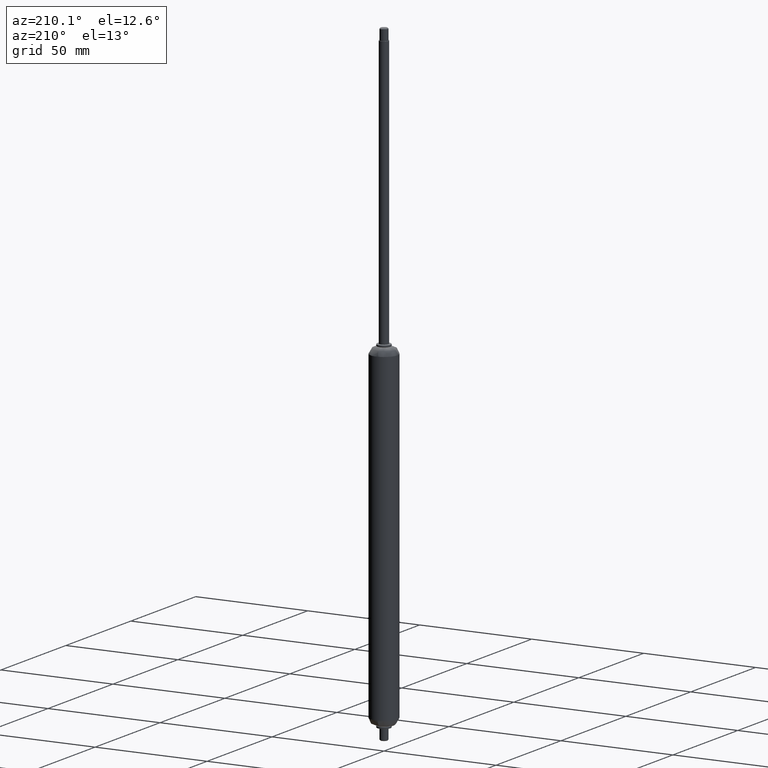
[diagram: clean part render]
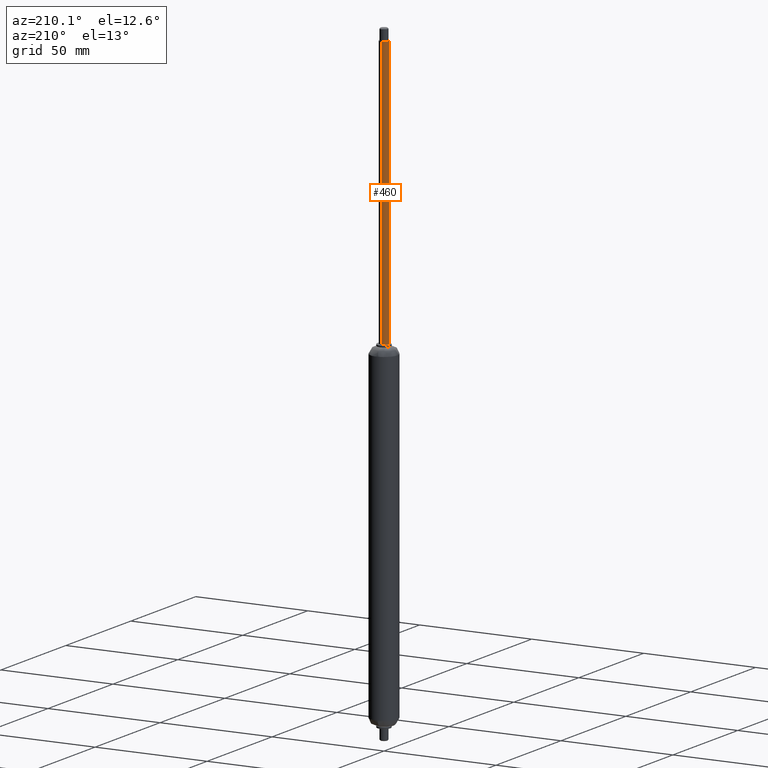
[diagram: same view with one face highlighted and labeled with its STEP entity id]
A machine part, auxiliary view. The second image highlights one B-rep face of the part: STEP entity #460.
In plain terms, the highlighted face is a freeform B-spline surface patch.
Its self-contained STEP definition (entity closure, byte-faithful):
#297=CARTESIAN_POINT('',(-0.236068470265785,1.986019052613468,0.999999999999993));
#298=VERTEX_POINT('',#297);
#316=CARTESIAN_POINT('',(-0.236068470265786,1.986019052613468,121.0));
#317=VERTEX_POINT('',#316);
#318=CARTESIAN_POINT('',(-0.236068470265786,1.986019052613468,121.0));
#319=CARTESIAN_POINT('',(-0.236068470265785,1.986019052613468,0.999999999999993));
#320=QUASI_UNIFORM_CURVE('',1,(#318,#319),.UNSPECIFIED.,.F.,.U.);
#321=EDGE_CURVE('',#317,#298,#320,.T.);
#340=CARTESIAN_POINT('',(0.122097082924850,-1.996269596607310,121.0));
#341=VERTEX_POINT('',#340);
#355=CARTESIAN_POINT('',(0.122097082924846,-1.996269596607310,0.999999999999993));
#356=VERTEX_POINT('',#355);
#357=CARTESIAN_POINT('',(0.122097082924850,-1.996269596607310,121.0));
#358=CARTESIAN_POINT('',(0.122097082924846,-1.996269596607310,0.999999999999993));
#359=QUASI_UNIFORM_CURVE('',1,(#357,#358),.UNSPECIFIED.,.F.,.U.);
#360=EDGE_CURVE('',#341,#356,#359,.T.);
#378=CARTESIAN_POINT('',(0.122097079069881,-1.996269596843090,124.0));
#379=CARTESIAN_POINT('',(-1.874172517773210,-2.118366675912764,124.000000000000030));
#380=CARTESIAN_POINT('',(-1.996269596842884,-0.122097079069675,124.0));
#381=CARTESIAN_POINT('',(-2.111572393464168,1.763086981678433,124.000000000000030));
#382=CARTESIAN_POINT('',(-0.236068469313235,1.986019052726692,124.000000000000100));
#383=CARTESIAN_POINT('',(0.122097079069881,-1.996269596843090,-2.075000000000003));
#384=CARTESIAN_POINT('',(-1.874172517773210,-2.118366675912764,-2.075000000000003));
#385=CARTESIAN_POINT('',(-1.996269596842884,-0.122097079069675,-2.075000000000003));
#386=CARTESIAN_POINT('',(-2.111572393464168,1.763086981678433,-2.075000000000003));
#387=CARTESIAN_POINT('',(-0.236068469313235,1.986019052726692,-2.075000000000003));
#395=(BOUNDED_SURFACE()B_SPLINE_SURFACE(2,1,((#378,#383),(#379,#384),(#380,#385),(#381,#386),(#382,#387)),.UNSPECIFIED.,.F.,.F.,.U.)B_SPLINE_SURFACE_WITH_KNOTS((3,2,3),(2,2),(0.0,3.313708498983691,6.494868658008034),(0.0,126.075000000000100),.UNSPECIFIED.)GEOMETRIC_REPRESENTATION_ITEM()RATIONAL_B_SPLINE_SURFACE(((1.0,1.0),(0.707106781186548,0.707106781186548),(1.0,1.0),(0.718822509939086,0.718822509939086),(0.977505800795127,0.977505800795127)))REPRESENTATION_ITEM('')SURFACE());
#396=CARTESIAN_POINT('',(-1.999999999999149,0.0,1.0));
#397=VERTEX_POINT('',#396);
#398=CARTESIAN_POINT('',(-1.999999999999149,0.0,1.0));
#399=CARTESIAN_POINT('',(-1.999999999999149,1.776349050186193,1.0));
#400=CARTESIAN_POINT('',(-0.236068470265785,1.986019052613468,0.999999999999993));
#408=(BOUNDED_CURVE()B_SPLINE_CURVE(2,(#398,#399,#400),.UNSPECIFIED.,.F.,.U.)B_SPLINE_CURVE_WITH_KNOTS((3,3),(0.0,0.229562473353527),.UNSPECIFIED.)CURVE()GEOMETRIC_REPRESENTATION_ITEM()RATIONAL_B_SPLINE_CURVE((1.0,0.731050833042833,0.956026753870129))REPRESENTATION_ITEM(''));
#409=EDGE_CURVE('',#397,#298,#408,.T.);
#410=ORIENTED_EDGE('',*,*,#409,.F.);
#411=CARTESIAN_POINT('',(0.122097082924846,-1.996269596607310,0.999999999999993));
#412=CARTESIAN_POINT('',(0.061105530463138,-1.999999999999355,1.0));
#413=CARTESIAN_POINT('',(2.060574E-013,-1.999999999999355,1.0));
#414=CARTESIAN_POINT('',(-1.999999999999149,-1.999999999999355,1.0));
#415=CARTESIAN_POINT('',(-1.999999999999149,0.0,1.0));
#423=(BOUNDED_CURVE()B_SPLINE_CURVE(2,(#411,#412,#413,#414,#415),.UNSPECIFIED.,.F.,.U.)B_SPLINE_CURVE_WITH_KNOTS((3,2,3),(0.739332961575564,0.750000000000000,1.0),.UNSPECIFIED.)CURVE()GEOMETRIC_REPRESENTATION_ITEM()RATIONAL_B_SPLINE_CURVE((0.976072040244969,0.987502787122640,1.0,0.707106781186548,1.0))REPRESENTATION_ITEM(''));
#424=EDGE_CURVE('',#356,#397,#423,.T.);
#425=ORIENTED_EDGE('',*,*,#424,.F.);
#426=ORIENTED_EDGE('',*,*,#360,.F.);
#427=CARTESIAN_POINT('',(-1.999999999999149,0.0,121.0));
#428=VERTEX_POINT('',#427);
#429=CARTESIAN_POINT('',(0.122097082924850,-1.996269596607310,121.0));
#430=CARTESIAN_POINT('',(0.061105530463143,-1.999999999999356,120.999999999999960));
#431=CARTESIAN_POINT('',(2.060574E-013,-1.999999999999355,121.0));
#432=CARTESIAN_POINT('',(-1.999999999999149,-1.999999999999355,121.0));
#433=CARTESIAN_POINT('',(-1.999999999999149,0.0,121.0));
#441=(BOUNDED_CURVE()B_SPLINE_CURVE(2,(#429,#430,#431,#432,#433),.UNSPECIFIED.,.F.,.U.)B_SPLINE_CURVE_WITH_KNOTS((3,2,3),(0.739332961575563,0.750000000000000,1.0),.UNSPECIFIED.)CURVE()GEOMETRIC_REPRESENTATION_ITEM()RATIONAL_B_SPLINE_CURVE((0.976072040244968,0.987502787122639,1.0,0.707106781186548,1.0))REPRESENTATION_ITEM(''));
#442=EDGE_CURVE('',#341,#428,#441,.T.);
#443=ORIENTED_EDGE('',*,*,#442,.T.);
#444=CARTESIAN_POINT('',(-1.999999999999149,0.0,121.0));
#445=CARTESIAN_POINT('',(-1.999999999999149,1.776349050186193,121.0));
#446=CARTESIAN_POINT('',(-0.236068470265786,1.986019052613468,121.000000000000010));
#454=(BOUNDED_CURVE()B_SPLINE_CURVE(2,(#444,#445,#446),.UNSPECIFIED.,.F.,.U.)B_SPLINE_CURVE_WITH_KNOTS((3,3),(0.0,0.229562473353527),.UNSPECIFIED.)CURVE()GEOMETRIC_REPRESENTATION_ITEM()RATIONAL_B_SPLINE_CURVE((1.0,0.731050833042833,0.956026753870129))REPRESENTATION_ITEM(''));
#455=EDGE_CURVE('',#428,#317,#454,.T.);
#456=ORIENTED_EDGE('',*,*,#455,.T.);
#457=ORIENTED_EDGE('',*,*,#321,.T.);
#458=EDGE_LOOP('',(#410,#425,#426,#443,#456,#457));
#459=FACE_OUTER_BOUND('',#458,.T.);
#460=ADVANCED_FACE('',(#459),#395,.T.);